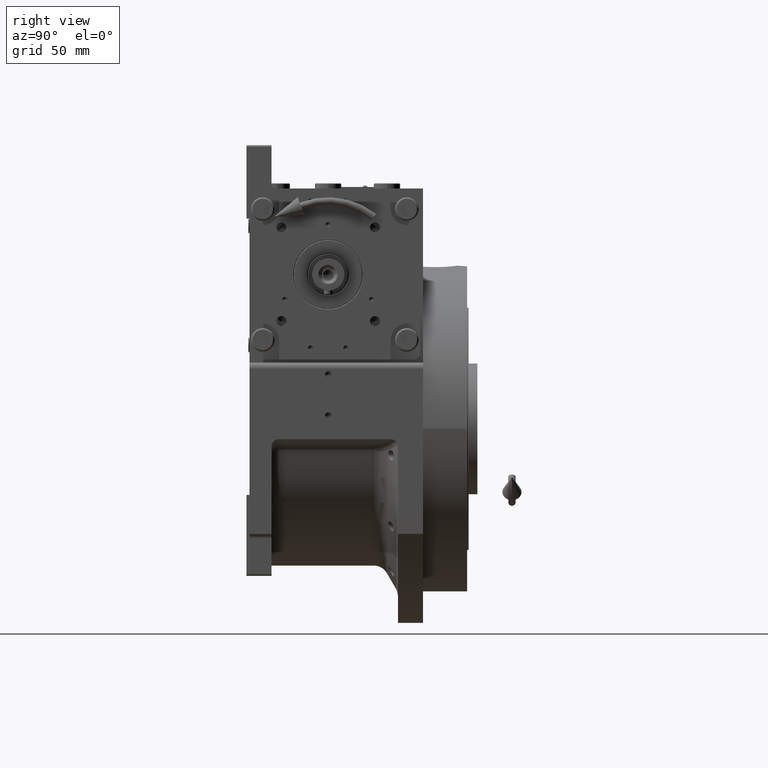
[diagram: clean part render]
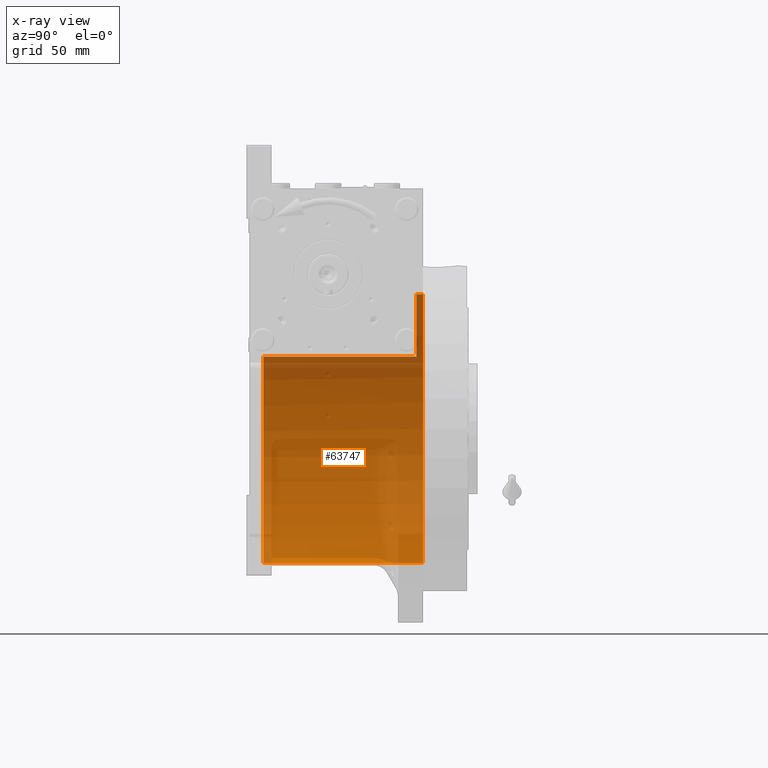
[diagram: x-ray — body ghosted, one internal face saturated and labeled with its STEP entity id]
A machine part, right view, then the same camera in x-ray: the body is ghosted and one INTERNAL B-rep face — a face not visible from any outside direction — is saturated and labeled: STEP entity #63747.
In plain terms, the highlighted cylindrical surface (partial cylindrical patch) has radius 91.5 mm, axis along (0, -1, 0).
Its self-contained STEP definition (entity closure, byte-faithful):
#1994 = DIRECTION ( 'NONE',  ( 0.000000000000000000, 0.000000000000000000, 1.000000000000000000 ) ) ;
#3847 = CARTESIAN_POINT ( 'NONE',  ( 0.000000000000000000, -44.00000000000000000, -91.50000000000000000 ) ) ;
#4348 = VERTEX_POINT ( 'NONE', #3847 ) ;
#4841 = VERTEX_POINT ( 'NONE', #20131 ) ;
#6085 = EDGE_CURVE ( 'NONE', #10783, #4348, #42208, .T. ) ;
#7391 = ORIENTED_EDGE ( 'NONE', *, *, #65289, .F. ) ;
#7419 = VERTEX_POINT ( 'NONE', #53109 ) ;
#7834 = CIRCLE ( 'NONE', #62634, 91.50000000000000000 ) ;
#10783 = VERTEX_POINT ( 'NONE', #35231 ) ;
#15827 = VECTOR ( 'NONE', #57077, 1000.000000000000000 ) ;
#18379 = VECTOR ( 'NONE', #39135, 1000.000000000000000 ) ;
#19548 = CARTESIAN_POINT ( 'NONE',  ( 1.120551821219827868E-14, 69.00000000000004263, 91.50000000000000000 ) ) ;
#20131 = CARTESIAN_POINT ( 'NONE',  ( 1.120551821219827868E-14, 64.50000000000000000, 91.50000000000000000 ) ) ;
#20141 = CARTESIAN_POINT ( 'NONE',  ( 0.000000000000000000, 69.00000000000004263, -91.50000000000000000 ) ) ;
#20252 = DIRECTION ( 'NONE',  ( 0.000000000000000000, -1.000000000000000000, 0.000000000000000000 ) ) ;
#21030 = CARTESIAN_POINT ( 'NONE',  ( 0.000000000000000000, 60.00000000000000000, 0.000000000000000000 ) ) ;
#25138 = CARTESIAN_POINT ( 'NONE',  ( 0.000000000000000000, 64.50000000000000000, 0.000000000000000000 ) ) ;
#26821 = AXIS2_PLACEMENT_3D ( 'NONE', #31827, #20252, #58825 ) ;
#29972 = EDGE_CURVE ( 'NONE', #4841, #49382, #36031, .T. ) ;
#31827 = CARTESIAN_POINT ( 'NONE',  ( 0.000000000000000000, 69.00000000000004263, 0.000000000000000000 ) ) ;
#33406 = AXIS2_PLACEMENT_3D ( 'NONE', #61202, #39787, #1994 ) ;
#35231 = CARTESIAN_POINT ( 'NONE',  ( 0.000000000000000000, 64.50000000000000000, -91.50000000000000000 ) ) ;
#35796 = VECTOR ( 'NONE', #62940, 1000.000000000000000 ) ;
#36001 = DIRECTION ( 'NONE',  ( -0.000000000000000000, -1.000000000000000000, -0.000000000000000000 ) ) ;
#36031 = LINE ( 'NONE', #19548, #15827 ) ;
#39135 = DIRECTION ( 'NONE',  ( -0.000000000000000000, 1.000000000000000000, -0.000000000000000000 ) ) ;
#39787 = DIRECTION ( 'NONE',  ( 0.000000000000000000, 1.000000000000000000, 0.000000000000000000 ) ) ;
#40515 = CYLINDRICAL_SURFACE ( 'NONE', #26821, 91.50000000000000000 ) ;
#40621 = EDGE_LOOP ( 'NONE', ( #65799, #60079, #7391, #68457, #46360, #42338 ) ) ;
#42208 = LINE ( 'NONE', #20141, #35796 ) ;
#42338 = ORIENTED_EDGE ( 'NONE', *, *, #6085, .F. ) ;
#42411 = DIRECTION ( 'NONE',  ( 0.000000000000000000, 1.000000000000000000, 0.000000000000000000 ) ) ;
#42922 = EDGE_CURVE ( 'NONE', #4348, #66954, #53555, .T. ) ;
#44359 = CARTESIAN_POINT ( 'NONE',  ( -77.27386362800812947, 69.00000000000004263, 48.99999999999998579 ) ) ;
#46360 = ORIENTED_EDGE ( 'NONE', *, *, #42922, .F. ) ;
#47550 = DIRECTION ( 'NONE',  ( 0.000000000000000000, 0.000000000000000000, 1.000000000000000000 ) ) ;
#49382 = VERTEX_POINT ( 'NONE', #51725 ) ;
#49776 = EDGE_CURVE ( 'NONE', #66954, #7419, #60202, .T. ) ;
#51725 = CARTESIAN_POINT ( 'NONE',  ( 1.120551821219827868E-14, 60.00000000000000000, 91.50000000000000000 ) ) ;
#53109 = CARTESIAN_POINT ( 'NONE',  ( -77.27386362800814368, 60.00000000000000000, 48.99999999999998579 ) ) ;
#53555 = CIRCLE ( 'NONE', #33406, 91.50000000000000000 ) ;
#56113 = AXIS2_PLACEMENT_3D ( 'NONE', #21030, #42411, #64177 ) ;
#57077 = DIRECTION ( 'NONE',  ( 0.000000000000000000, -1.000000000000000000, 0.000000000000000000 ) ) ;
#58496 = FACE_OUTER_BOUND ( 'NONE', #40621, .T. ) ;
#58825 = DIRECTION ( 'NONE',  ( 0.000000000000000000, 0.000000000000000000, -1.000000000000000000 ) ) ;
#59467 = EDGE_CURVE ( 'NONE', #4841, #10783, #7834, .T. ) ;
#60079 = ORIENTED_EDGE ( 'NONE', *, *, #29972, .T. ) ;
#60202 = LINE ( 'NONE', #44359, #18379 ) ;
#61202 = CARTESIAN_POINT ( 'NONE',  ( 0.000000000000000000, -44.00000000000000000, 0.000000000000000000 ) ) ;
#62634 = AXIS2_PLACEMENT_3D ( 'NONE', #25138, #36001, #47550 ) ;
#62940 = DIRECTION ( 'NONE',  ( 0.000000000000000000, -1.000000000000000000, 0.000000000000000000 ) ) ;
#63747 = ADVANCED_FACE ( 'NONE', ( #58496 ), #40515, .F. ) ;
#64177 = DIRECTION ( 'NONE',  ( 1.776356839400250465E-15, 0.000000000000000000, -1.000000000000000000 ) ) ;
#65289 = EDGE_CURVE ( 'NONE', #7419, #49382, #66166, .T. ) ;
#65799 = ORIENTED_EDGE ( 'NONE', *, *, #59467, .F. ) ;
#66166 = CIRCLE ( 'NONE', #56113, 91.50000000000000000 ) ;
#66954 = VERTEX_POINT ( 'NONE', #67846 ) ;
#67846 = CARTESIAN_POINT ( 'NONE',  ( -77.27386362800814368, -44.00000000000000000, 49.00000000000000000 ) ) ;
#68457 = ORIENTED_EDGE ( 'NONE', *, *, #49776, .F. ) ;